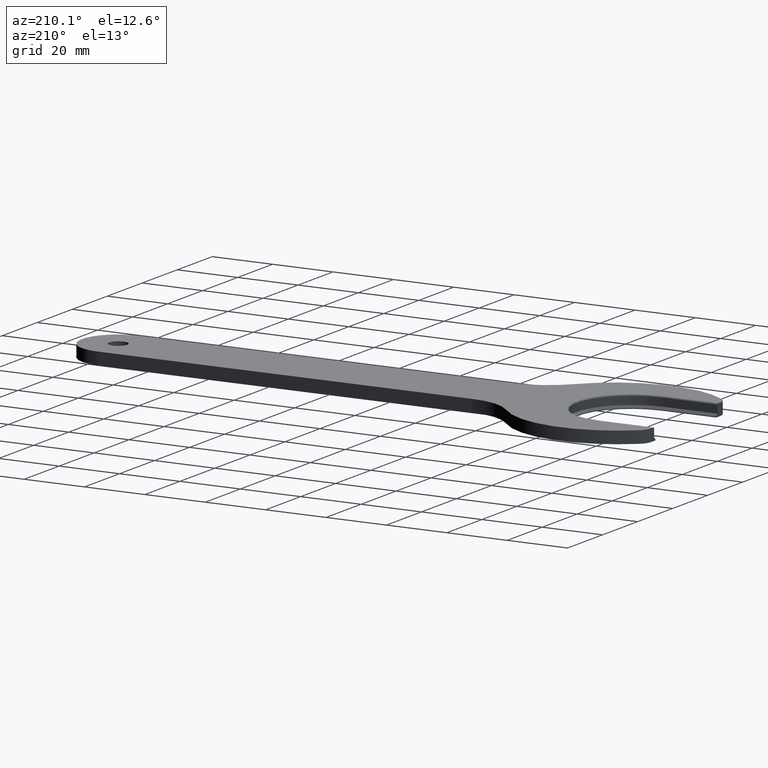
[diagram: clean part render]
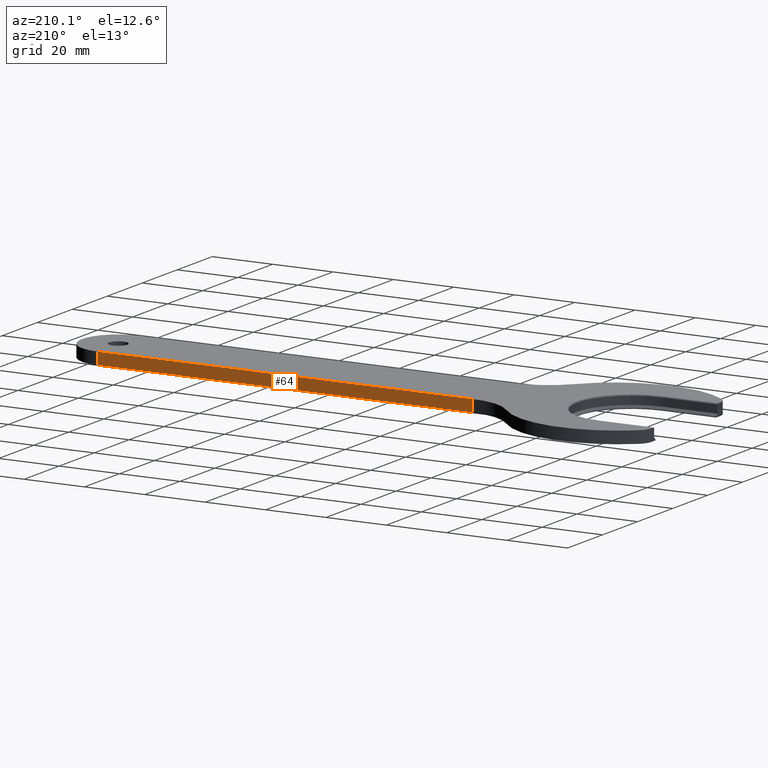
[diagram: same view with one face highlighted and labeled with its STEP entity id]
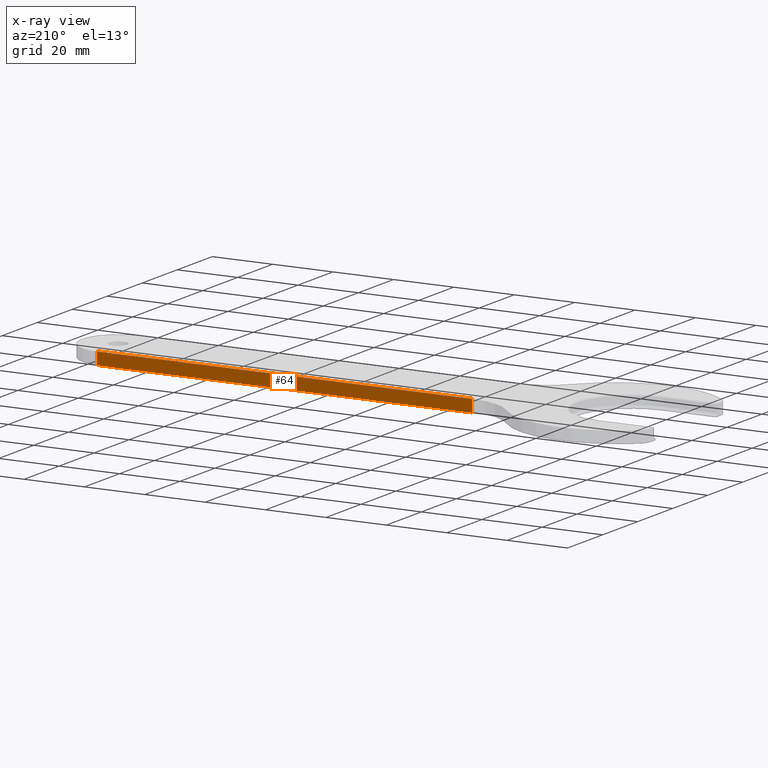
[diagram: x-ray of the same camera — body ghosted, the highlighted face saturated]
A machine part, auxiliary view. The second image highlights one B-rep face of the part: STEP entity #64.
The next image is the same camera in x-ray: the body ghosted, the highlighted face saturated — about 0% of this face is hidden behind the body in this view.
In plain terms, the highlighted planar face has unit normal (0, 1, 0).
Its self-contained STEP definition (entity closure, byte-faithful):
#64 = ADVANCED_FACE( '', ( #140 ), #141, .T. );
#140 = FACE_OUTER_BOUND( '', #228, .T. );
#141 = PLANE( '', #229 );
#228 = EDGE_LOOP( '', ( #345, #346, #347, #348 ) );
#229 = AXIS2_PLACEMENT_3D( '', #349, #350, #351 );
#345 = ORIENTED_EDGE( '', *, *, #553, .F. );
#346 = ORIENTED_EDGE( '', *, *, #554, .F. );
#347 = ORIENTED_EDGE( '', *, *, #555, .T. );
#348 = ORIENTED_EDGE( '', *, *, #556, .T. );
#349 = CARTESIAN_POINT( '', ( 45.8319727664486, 12.0000000000000, 2.00000000000000 ) );
#350 = DIRECTION( '', ( 0.000000000000000, 1.00000000000000, 0.000000000000000 ) );
#351 = DIRECTION( '', ( 0.000000000000000, 0.000000000000000, 1.00000000000000 ) );
#553 = EDGE_CURVE( '', #662, #663, #664, .T. );
#554 = EDGE_CURVE( '', #665, #662, #666, .T. );
#555 = EDGE_CURVE( '', #665, #667, #668, .T. );
#556 = EDGE_CURVE( '', #667, #663, #669, .T. );
#662 = VERTEX_POINT( '', #812 );
#663 = VERTEX_POINT( '', #813 );
#664 = LINE( '', #814, #815 );
#665 = VERTEX_POINT( '', #816 );
#666 = LINE( '', #817, #818 );
#667 = VERTEX_POINT( '', #819 );
#668 = LINE( '', #820, #821 );
#669 = LINE( '', #822, #823 );
#812 = CARTESIAN_POINT( '', ( 45.8319727664486, 12.0000000000000, -2.00000000000000 ) );
#813 = CARTESIAN_POINT( '', ( 170.000000000000, 12.0000000000000, -2.00000000000000 ) );
#814 = CARTESIAN_POINT( '', ( 45.8319727664486, 12.0000000000000, -2.00000000000000 ) );
#815 = VECTOR( '', #958, 1000.00000000000 );
#816 = CARTESIAN_POINT( '', ( 45.8319727664486, 12.0000000000000, 2.00000000000000 ) );
#817 = CARTESIAN_POINT( '', ( 45.8319727664486, 12.0000000000000, 2.00000000000000 ) );
#818 = VECTOR( '', #959, 1000.00000000000 );
#819 = CARTESIAN_POINT( '', ( 170.000000000000, 12.0000000000000, 2.00000000000000 ) );
#820 = CARTESIAN_POINT( '', ( 45.8319727664486, 12.0000000000000, 2.00000000000000 ) );
#821 = VECTOR( '', #960, 1000.00000000000 );
#822 = CARTESIAN_POINT( '', ( 170.000000000000, 12.0000000000000, 2.00000000000000 ) );
#823 = VECTOR( '', #961, 1000.00000000000 );
#958 = DIRECTION( '', ( 1.00000000000000, 0.000000000000000, 0.000000000000000 ) );
#959 = DIRECTION( '', ( 0.000000000000000, 0.000000000000000, -1.00000000000000 ) );
#960 = DIRECTION( '', ( 1.00000000000000, 0.000000000000000, 0.000000000000000 ) );
#961 = DIRECTION( '', ( 0.000000000000000, 0.000000000000000, -1.00000000000000 ) );